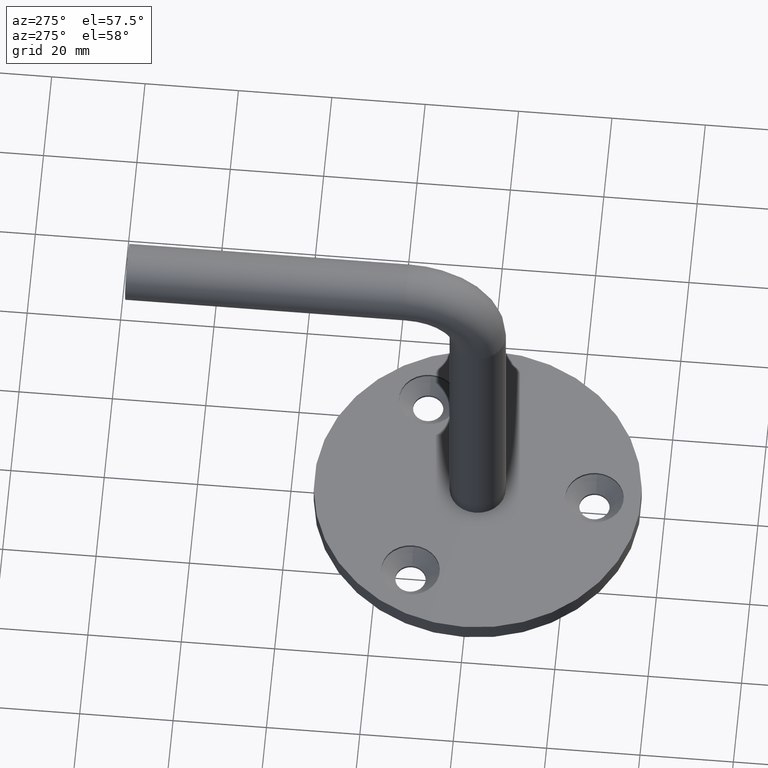
[diagram: clean part render]
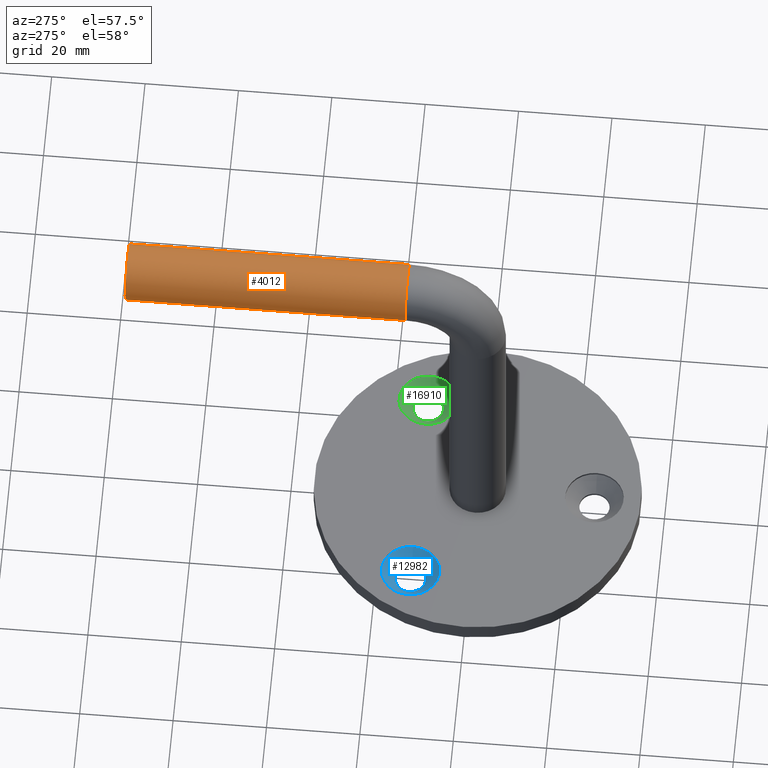
[diagram: same view with three faces highlighted in distinct colors, each labeled with its STEP entity id]
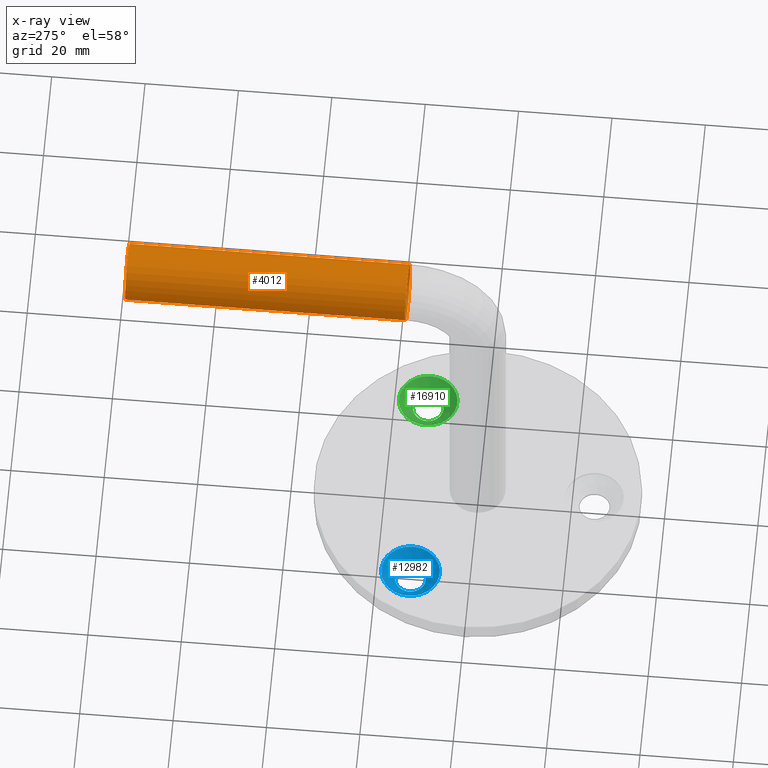
[diagram: x-ray of the same camera — body ghosted, the three highlighted faces saturated]
A machine part, auxiliary view with three faces highlighted in distinct colors.
The next image is the same camera in x-ray (body ghosted, the three faces saturated) — at least one of them is partly hidden behind the body in this view.
Their STEP definitions:

[orange] entity #4012 — the highlighted cylindrical surface (bore or boss wall) has radius 6 mm, axis along (0, 1, 0).
#484 = AXIS2_PLACEMENT_3D ( 'NONE', #15924, #7480, #8906 ) ;
#618 = AXIS2_PLACEMENT_3D ( 'NONE', #16677, #8226, #16741 ) ;
#2642 = AXIS2_PLACEMENT_3D ( 'NONE', #12687, #18323, #12631 ) ;
#2965 = EDGE_CURVE ( 'NONE', #14786, #14786, #11317, .T. ) ;
#4012 = ADVANCED_FACE ( 'NONE', ( #12810, #5553 ), #13474, .T. ) ;
#5041 = EDGE_LOOP ( 'NONE', ( #6849 ) ) ;
#5553 = FACE_OUTER_BOUND ( 'NONE', #11493, .T. ) ;
#5569 = EDGE_CURVE ( 'NONE', #11069, #11069, #8389, .T. ) ;
#6849 = ORIENTED_EDGE ( 'NONE', *, *, #5569, .F. ) ;
#7480 = DIRECTION ( 'NONE',  ( 0.000000000000000000, 1.000000000000000000, -1.137523590804463822E-16 ) ) ;
#8162 = ORIENTED_EDGE ( 'NONE', *, *, #2965, .T. ) ;
#8226 = DIRECTION ( 'NONE',  ( 0.000000000000000000, 1.000000000000000000, -1.137523590804463822E-16 ) ) ;
#8389 = CIRCLE ( 'NONE', #618, 6.000000000000000888 ) ;
#8906 = DIRECTION ( 'NONE',  ( 1.000000000000000000, 0.000000000000000000, 0.000000000000000000 ) ) ;
#11069 = VERTEX_POINT ( 'NONE', #17341 ) ;
#11313 = CARTESIAN_POINT ( 'NONE',  ( 6.000000000000000888, 14.99999999999999289, 76.00000000000000000 ) ) ;
#11317 = CIRCLE ( 'NONE', #484, 6.000000000000000888 ) ;
#11493 = EDGE_LOOP ( 'NONE', ( #8162 ) ) ;
#12631 = DIRECTION ( 'NONE',  ( 0.000000000000000000, 0.000000000000000000, 1.000000000000000000 ) ) ;
#12687 = CARTESIAN_POINT ( 'NONE',  ( 0.000000000000000000, 14.99999999999999289, 76.00000000000000000 ) ) ;
#12810 = FACE_OUTER_BOUND ( 'NONE', #5041, .T. ) ;
#13474 = CYLINDRICAL_SURFACE ( 'NONE', #2642, 6.000000000000005329 ) ;
#14786 = VERTEX_POINT ( 'NONE', #11313 ) ;
#15924 = CARTESIAN_POINT ( 'NONE',  ( 0.000000000000000000, 14.99999999999999289, 76.00000000000000000 ) ) ;
#16677 = CARTESIAN_POINT ( 'NONE',  ( 0.000000000000000000, 74.99999999999997158, 76.00000000000000000 ) ) ;
#16741 = DIRECTION ( 'NONE',  ( 1.000000000000000000, 0.000000000000000000, 0.000000000000000000 ) ) ;
#17341 = CARTESIAN_POINT ( 'NONE',  ( 6.000000000000000888, 74.99999999999997158, 76.00000000000000000 ) ) ;
#18323 = DIRECTION ( 'NONE',  ( 0.000000000000000000, 1.000000000000000000, 0.000000000000000000 ) ) ;

[blue] entity #12982 — the highlighted conical surface has half-angle 45 deg.
#176 = CARTESIAN_POINT ( 'NONE',  ( -21.65063509461098690, 12.49999999999995204, 3.500000000000003109 ) ) ;
#926 = EDGE_LOOP ( 'NONE', ( #2752 ) ) ;
#983 = DIRECTION ( 'NONE',  ( 1.000000000000000000, 0.000000000000000000, 0.000000000000000000 ) ) ;
#1601 = DIRECTION ( 'NONE',  ( -0.000000000000000000, -0.000000000000000000, 1.000000000000000000 ) ) ;
#2670 = DIRECTION ( 'NONE',  ( 1.000000000000000000, 0.000000000000000000, 0.000000000000000000 ) ) ;
#2752 = ORIENTED_EDGE ( 'NONE', *, *, #9356, .F. ) ;
#3010 = AXIS2_PLACEMENT_3D ( 'NONE', #17764, #17701, #3529 ) ;
#3034 = AXIS2_PLACEMENT_3D ( 'NONE', #6610, #9474, #983 ) ;
#3529 = DIRECTION ( 'NONE',  ( 1.000000000000000000, 0.000000000000000000, 0.000000000000000000 ) ) ;
#4271 = EDGE_LOOP ( 'NONE', ( #16458 ) ) ;
#5431 = CONICAL_SURFACE ( 'NONE', #9688, 6.249999999999998224, 0.7853981633974477239 ) ;
#6610 = CARTESIAN_POINT ( 'NONE',  ( -21.65063509461098690, 12.49999999999995204, 3.500000000000003109 ) ) ;
#6644 = VERTEX_POINT ( 'NONE', #15963 ) ;
#8069 = FACE_OUTER_BOUND ( 'NONE', #4271, .T. ) ;
#9356 = EDGE_CURVE ( 'NONE', #13252, #13252, #9911, .T. ) ;
#9474 = DIRECTION ( 'NONE',  ( -0.000000000000000000, -0.000000000000000000, 1.000000000000000000 ) ) ;
#9688 = AXIS2_PLACEMENT_3D ( 'NONE', #176, #1601, #2670 ) ;
#9911 = CIRCLE ( 'NONE', #3010, 3.250000000000009770 ) ;
#12848 = EDGE_CURVE ( 'NONE', #6644, #6644, #12919, .T. ) ;
#12919 = CIRCLE ( 'NONE', #3034, 6.249999999999998224 ) ;
#12982 = ADVANCED_FACE ( 'NONE', ( #16918, #8069 ), #5431, .F. ) ;
#13252 = VERTEX_POINT ( 'NONE', #14483 ) ;
#14483 = CARTESIAN_POINT ( 'NONE',  ( -18.40063509461097624, 12.49999999999995204, 0.5000000000000108802 ) ) ;
#15963 = CARTESIAN_POINT ( 'NONE',  ( -15.40063509461098867, 12.49999999999995204, 3.500000000000003109 ) ) ;
#16458 = ORIENTED_EDGE ( 'NONE', *, *, #12848, .T. ) ;
#16918 = FACE_BOUND ( 'NONE', #926, .T. ) ;
#17701 = DIRECTION ( 'NONE',  ( -0.000000000000000000, -0.000000000000000000, 1.000000000000000000 ) ) ;
#17764 = CARTESIAN_POINT ( 'NONE',  ( -21.65063509461098690, 12.49999999999995204, 0.5000000000000108802 ) ) ;

[green] entity #16910 — the highlighted conical surface has half-angle 45 deg.
#1089 = DIRECTION ( 'NONE',  ( 1.000000000000000000, 0.000000000000000000, 0.000000000000000000 ) ) ;
#2782 = CARTESIAN_POINT ( 'NONE',  ( 24.90063509461101887, 12.49999999999994138, 0.5000000000000108802 ) ) ;
#2911 = EDGE_CURVE ( 'NONE', #8868, #8868, #14364, .T. ) ;
#4551 = DIRECTION ( 'NONE',  ( 1.000000000000000000, 0.000000000000000000, 0.000000000000000000 ) ) ;
#4665 = CARTESIAN_POINT ( 'NONE',  ( 27.90063509461100466, 12.49999999999994138, 3.500000000000003109 ) ) ;
#4683 = DIRECTION ( 'NONE',  ( -0.000000000000000000, -0.000000000000000000, 1.000000000000000000 ) ) ;
#4896 = CONICAL_SURFACE ( 'NONE', #17978, 6.249999999999998224, 0.7853981633974471688 ) ;
#6332 = AXIS2_PLACEMENT_3D ( 'NONE', #6586, #12276, #1089 ) ;
#6586 = CARTESIAN_POINT ( 'NONE',  ( 21.65063509461100466, 12.49999999999994138, 3.500000000000003109 ) ) ;
#7054 = CARTESIAN_POINT ( 'NONE',  ( 21.65063509461100466, 12.49999999999994138, 3.500000000000003109 ) ) ;
#7417 = CARTESIAN_POINT ( 'NONE',  ( 21.65063509461100466, 12.49999999999994138, 0.5000000000000108802 ) ) ;
#7533 = VERTEX_POINT ( 'NONE', #4665 ) ;
#8868 = VERTEX_POINT ( 'NONE', #2782 ) ;
#10415 = EDGE_CURVE ( 'NONE', #7533, #7533, #17613, .T. ) ;
#10931 = AXIS2_PLACEMENT_3D ( 'NONE', #7417, #4683, #4551 ) ;
#11979 = FACE_OUTER_BOUND ( 'NONE', #17694, .T. ) ;
#12276 = DIRECTION ( 'NONE',  ( -0.000000000000000000, -0.000000000000000000, 1.000000000000000000 ) ) ;
#12448 = ORIENTED_EDGE ( 'NONE', *, *, #2911, .F. ) ;
#12578 = EDGE_LOOP ( 'NONE', ( #12448 ) ) ;
#12836 = DIRECTION ( 'NONE',  ( -0.000000000000000000, -0.000000000000000000, 1.000000000000000000 ) ) ;
#14073 = DIRECTION ( 'NONE',  ( 1.000000000000000000, 0.000000000000000000, 0.000000000000000000 ) ) ;
#14364 = CIRCLE ( 'NONE', #10931, 3.250000000000013323 ) ;
#14408 = ORIENTED_EDGE ( 'NONE', *, *, #10415, .T. ) ;
#16622 = FACE_BOUND ( 'NONE', #12578, .T. ) ;
#16910 = ADVANCED_FACE ( 'NONE', ( #16622, #11979 ), #4896, .F. ) ;
#17613 = CIRCLE ( 'NONE', #6332, 6.249999999999998224 ) ;
#17694 = EDGE_LOOP ( 'NONE', ( #14408 ) ) ;
#17978 = AXIS2_PLACEMENT_3D ( 'NONE', #7054, #12836, #14073 ) ;